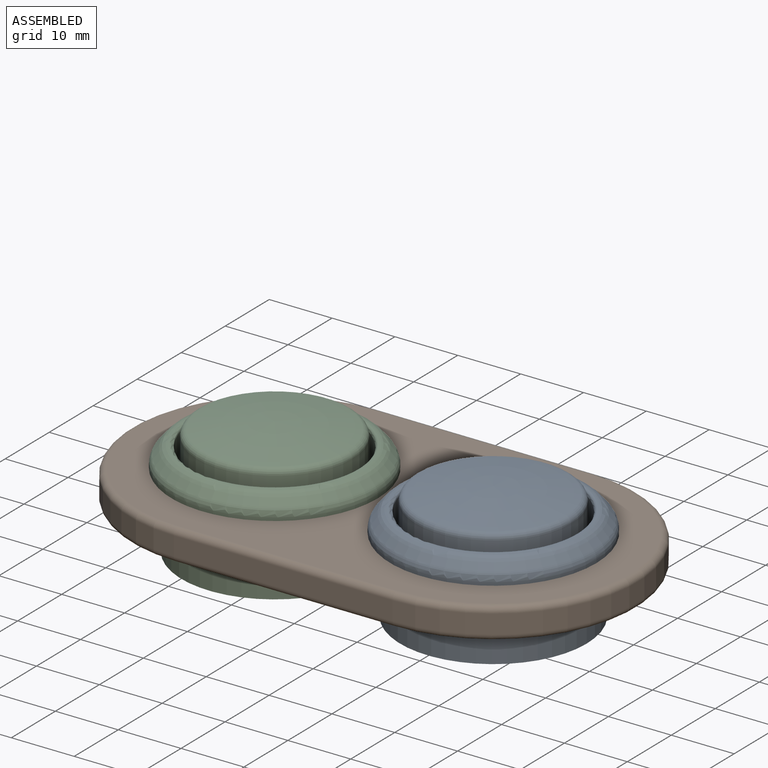
[diagram: assembled view]
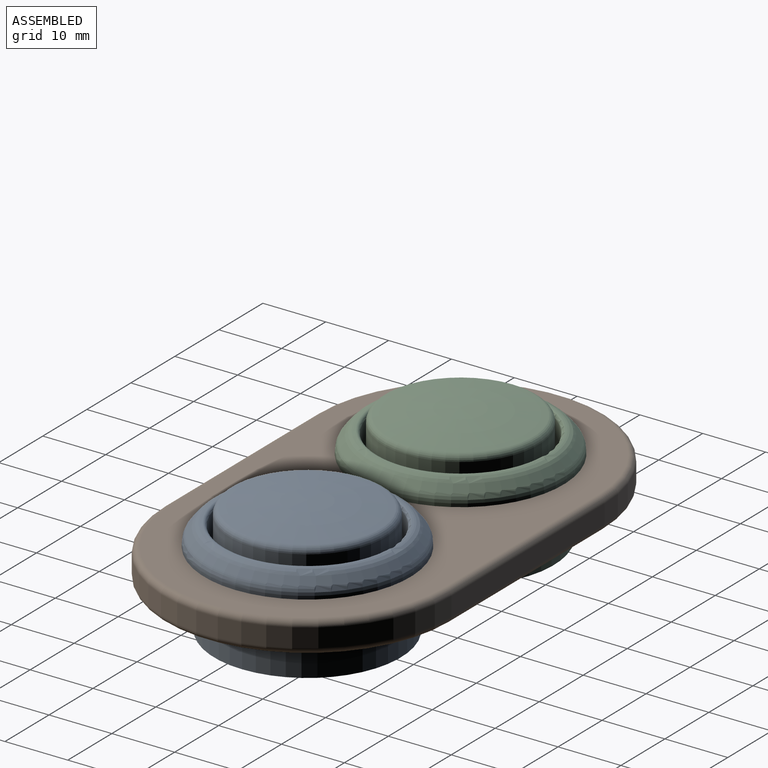
[diagram: assembled view, second angle]
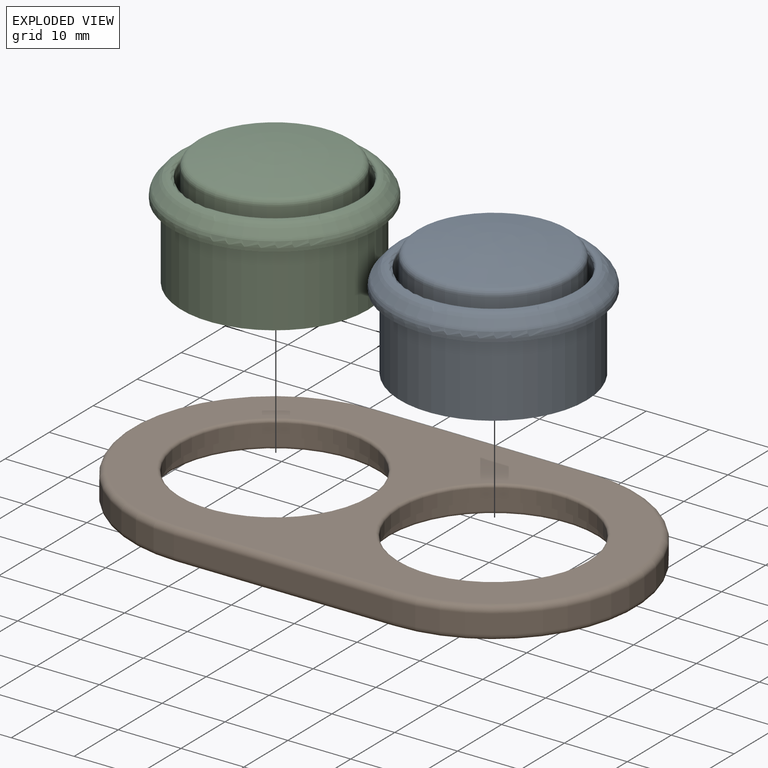
[diagram: exploded view]
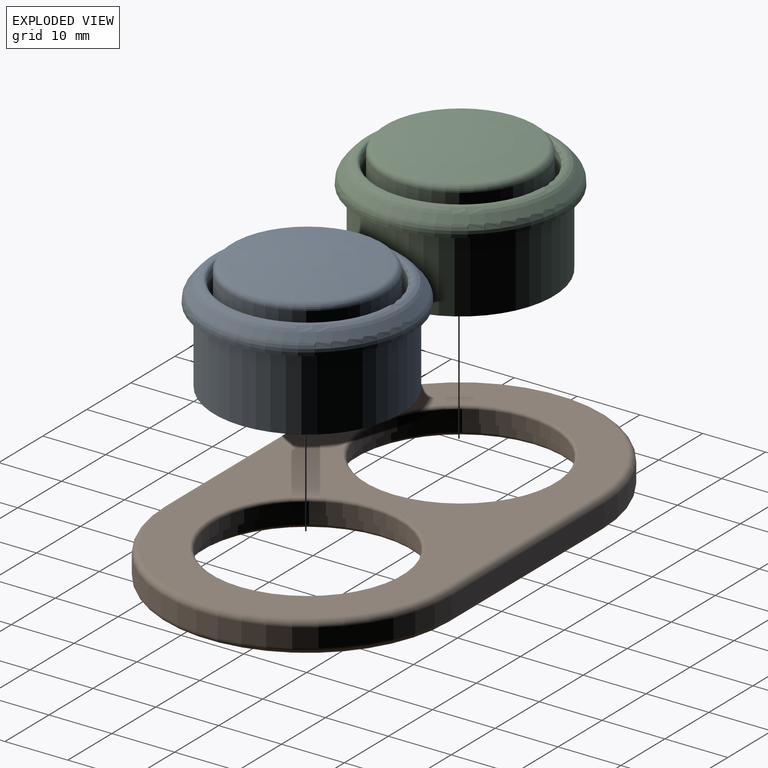
[diagram: exploded view, second angle]
ASSEMBLY  parts=3 mates=2
PART A: 15 faces, bbox 35.5x35.5x18.7 mm
  f0: cylinder r=14.85mm len=29.7mm, axis (0,0,1), area 1119.7mm2, adj f1,f3
  f1: plane 29.7x29.7mm, normal (0,0,-1), area 692.8mm2, adj f0
  f2: cylinder r=16.4mm len=32.8mm, axis (0,0,-1), area 53.4mm2, adj f3,f5
  f3: plane 32.8x32.8mm, normal (0,0,-1), area 152.2mm2, adj f0,f2
  f4: cone r=14.5mm half-angle=40.2deg, axis (0,0,-1), area 125.2mm2, adj f5,f6
  f5: torus R=14.4mm, axis (0,0,1), area 143.1mm2, adj f2,f4
  f6: torus R=13.57mm, axis (0,0,1), area 148.2mm2, adj f4,f14
  f7: cylinder r=13.15mm len=26.3mm, axis (0,0,1), area 784.8mm2, adj f8,f14
  f8: plane 26.3x26.3mm, normal (0,0,1), area 64.1mm2, adj f7,f13
  f9: plane 0.07x0.07mm, normal (0,0,1), area 0mm2, adj f10
  f10: torus R=0.03mm, axis (0,0,1), area 354.6mm2, adj f9,f11
  f11: cone r=5.35mm half-angle=79.9deg, axis (0,0,-1), area 66.6mm2, adj f10,f12
  f12: torus R=11.35mm, axis (0,0,1), area 105.6mm2, adj f11,f13
  f13: cylinder r=12.35mm len=24.7mm, axis (0,0,-1), area 862.3mm2, adj f8,f12
  f14: torus R=13.65mm, axis (0,0,-1), area 68mm2, adj f6,f7
PART B: 24 faces, bbox 84.4x49.6x5 mm
  f0: plane 78.6x43.8mm, normal (0,0,-1), area 1236.4mm2, adj f10,f11,f20,f21,f22,f23
  f1: plane 78.6x43.8mm, normal (0,0,1), area 1540.9mm2, adj f8,f9,f16,f17,f18,f19
  f2: cylinder r=14.9mm len=29.8mm, axis (0,0,-1), area 187.2mm2, adj f7,f9
  f3: cylinder r=14.9mm len=29.8mm, axis (0,0,-1), area 187.2mm2, adj f5,f8
  f4: cylinder r=16.4mm len=32.8mm, axis (0,0,-1), area 206.1mm2, adj f5,f11
  f5: plane 32.8x32.8mm, normal (0,0,-1), area 147.5mm2, adj f3,f4
  f6: cylinder r=16.4mm len=32.8mm, axis (0,0,-1), area 206.1mm2, adj f7,f10
  f7: plane 32.8x32.8mm, normal (0,0,-1), area 147.5mm2, adj f2,f6
  f8: torus R=15.4mm, axis (0,0,1), area 74.4mm2, adj f1,f3
  f9: torus R=15.4mm, axis (0,0,1), area 74.4mm2, adj f1,f2
  f10: torus R=16.9mm, axis (0,0,1), area 81.8mm2, adj f0,f6
  f11: torus R=16.9mm, axis (0,0,1), area 81.8mm2, adj f0,f4
  f12: plane 34.8x3mm, normal (0,-1,0), area 104.4mm2, adj f13,f14,f19,f23
  f13: cylinder r=22.9mm len=45.8mm, axis (0,0,1), area 215.8mm2, adj f12,f15,f18,f22
  f14: cylinder r=22.9mm len=45.8mm, axis (0,0,1), area 215.8mm2, adj f12,f15,f17,f21
  f15: plane 34.8x3mm, normal (0,1,0), area 104.4mm2, adj f13,f14,f16,f20
  f16: cylinder r=1mm len=34.8mm, axis (-1,0,0), area 54.7mm2, adj f1,f15,f17,f18
  f17: torus R=21.9mm, axis (0,0,1), area 111.2mm2, adj f1,f14,f16,f19
  f18: torus R=21.9mm, axis (0,0,1), area 111.2mm2, adj f1,f13,f16,f19
  f19: cylinder r=1mm len=34.8mm, axis (1,0,0), area 54.7mm2, adj f1,f12,f17,f18
  f20: cylinder r=1mm len=34.8mm, axis (1,0,0), area 54.7mm2, adj f0,f15,f21,f22
  f21: torus R=21.9mm, axis (0,0,1), area 111.2mm2, adj f0,f14,f20,f23
  f22: torus R=21.9mm, axis (0,0,1), area 111.2mm2, adj f0,f13,f20,f23
  f23: cylinder r=1mm len=34.8mm, axis (-1,0,0), area 54.7mm2, adj f0,f12,f21,f22
PART C: same geometry as A
PLACE A t=(-68.32,-25.7,18.85)mm
PLACE B t=(-68.32,-25.7,13.85)mm fixed
PLACE C t=(-103.12,-25.7,18.85)mm
MATE slider C.f2 <-> B.f3  axis (0,0,-1) through (-103.12,-25.7,18.85)mm
MATE slider A.f2 <-> B.f2  axis (0,0,-1) through (-68.32,-25.7,18.85)mm
